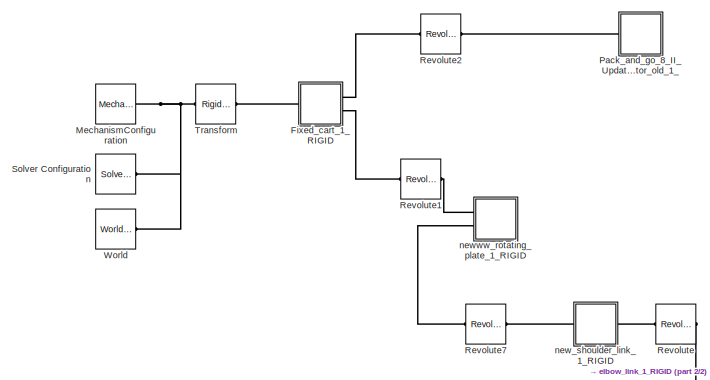
[diagram: root canvas - part 1/2, left side, full height]
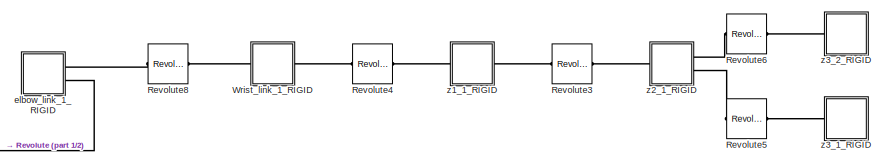
[diagram: root canvas - part 2/2, bottom right region]
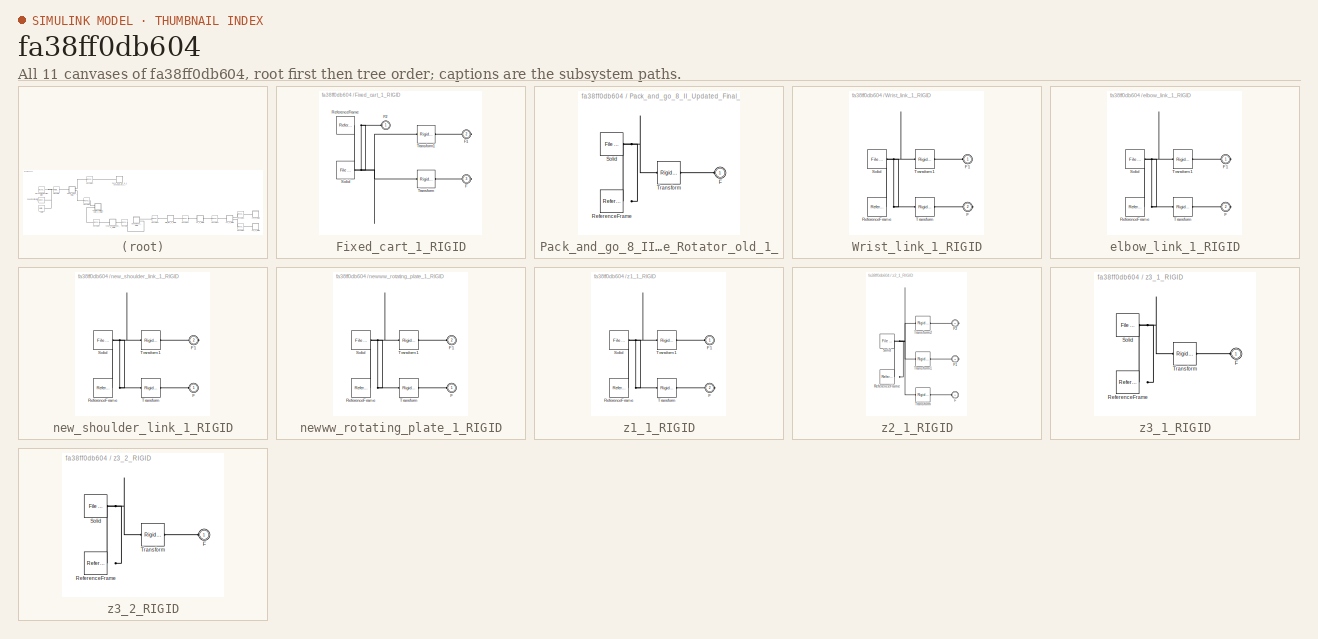
[diagram: thumbnail index - all 11 canvases of the model, root first then tree order]
MODEL slx_fa38ff0db604
KIND model
CONFIG AbsTol = auto
CONFIG EnableMultiTasking = off
CONFIG FixedStep = auto
CONFIG MaxStep = auto
CONFIG MinStep = auto
CONFIG RelTol = 1e-3
CONFIG SampleTimeConstraint = Unconstrained
CONFIG SolverName = VariableStepAuto
CONFIG StartTime = 0.0
CONFIG StopTime = 10.0
WORKSPACE source: external: MATLAB File  (data not in archive)
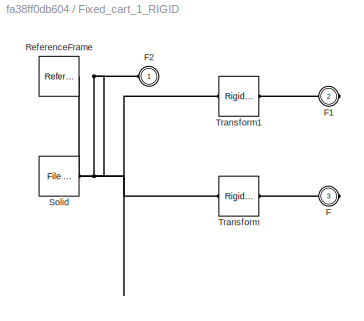
BLOCK [SubSystem] Fixed_cart_1_RIGID
  Ports = [0, 0, 0, 0, 0, 1, 2]
  RequestExecContextInheritance = off
BLOCK [PMIOPort] Fixed_cart_1_RIGID/F
  Port = 3
  Side = Right
BLOCK [PMIOPort] Fixed_cart_1_RIGID/F1
  Port = 2
  Side = Right
BLOCK [PMIOPort] Fixed_cart_1_RIGID/F2
  Side = Left
BLOCK [Reference] Fixed_cart_1_RIGID/ReferenceFrame  REF=sm_lib/Frames and
Transforms/Reference
Frame
  Ports = [0, 0, 0, 0, 0, 0, 1]
  SourceBlock = sm_lib/Frames and\nTransforms/Reference\nFrame
  SourceProductBaseCode = MS
  SourceType = Reference\nFrame
BLOCK [Reference] Fixed_cart_1_RIGID/Solid  REF=sm_lib/Body Elements/File Solid
  Ports = [0, 0, 0, 0, 0, 0, 1]
  SourceBlock = sm_lib/Body Elements/File Solid
  SourceProductBaseCode = MS
  SourceType = File Solid
BLOCK [Reference] Fixed_cart_1_RIGID/Transform  REF=sm_lib/Frames and
Transforms/Rigid
Transform
  Ports = [0, 0, 0, 0, 0, 1, 1]
  SourceBlock = sm_lib/Frames and\nTransforms/Rigid\nTransform
  SourceProductBaseCode = MS
  SourceType = Rigid\nTransform
BLOCK [Reference] Fixed_cart_1_RIGID/Transform1  REF=sm_lib/Frames and
Transforms/Rigid
Transform
  Ports = [0, 0, 0, 0, 0, 1, 1]
  SourceBlock = sm_lib/Frames and\nTransforms/Rigid\nTransform
  SourceProductBaseCode = MS
  SourceType = Rigid\nTransform
BLOCK [Reference] MechanismConfiguration  REF=sm_lib/Utilities/Mechanism
Configuration
  Ports = [0, 0, 0, 0, 0, 0, 1]
  SourceBlock = sm_lib/Utilities/Mechanism\nConfiguration
  SourceProductBaseCode = MS
  SourceType = Mechanism\nConfiguration
BLOCK [SubSystem] Pack_and_go_8_II_Updated_Final_Assembly_FileBase_Rotator_old_1_
  Ports = [0, 0, 0, 0, 0, 1]
  RequestExecContextInheritance = off
BLOCK [PMIOPort] Pack_and_go_8_II_Updated_Final_Assembly_FileBase_Rotator_old_1_/F
  Side = Left
BLOCK [Reference] Pack_and_go_8_II_Updated_Final_Assembly_FileBase_Rotator_old_1_/ReferenceFrame  REF=sm_lib/Frames and
Transforms/Reference
Frame
  Ports = [0, 0, 0, 0, 0, 0, 1]
  SourceBlock = sm_lib/Frames and\nTransforms/Reference\nFrame
  SourceProductBaseCode = MS
  SourceType = Reference\nFrame
BLOCK [Reference] Pack_and_go_8_II_Updated_Final_Assembly_FileBase_Rotator_old_1_/Solid  REF=sm_lib/Body Elements/File Solid
  Ports = [0, 0, 0, 0, 0, 0, 1]
  SourceBlock = sm_lib/Body Elements/File Solid
  SourceProductBaseCode = MS
  SourceType = File Solid
BLOCK [Reference] Pack_and_go_8_II_Updated_Final_Assembly_FileBase_Rotator_old_1_/Transform  REF=sm_lib/Frames and
Transforms/Rigid
Transform
  Ports = [0, 0, 0, 0, 0, 1, 1]
  SourceBlock = sm_lib/Frames and\nTransforms/Rigid\nTransform
  SourceProductBaseCode = MS
  SourceType = Rigid\nTransform
BLOCK [Reference] Revolute  REF=sm_lib/Joints/Revolute Joint
  Ports = [0, 0, 0, 0, 0, 1, 1]
  SourceBlock = sm_lib/Joints/Revolute Joint
  SourceProductBaseCode = MS
  SourceType = Revolute Joint
BLOCK [Reference] Revolute1  REF=sm_lib/Joints/Revolute Joint
  Ports = [0, 0, 0, 0, 0, 1, 1]
  SourceBlock = sm_lib/Joints/Revolute Joint
  SourceProductBaseCode = MS
  SourceType = Revolute Joint
BLOCK [Reference] Revolute2  REF=sm_lib/Joints/Revolute Joint
  Ports = [0, 0, 0, 0, 0, 1, 1]
  SourceBlock = sm_lib/Joints/Revolute Joint
  SourceProductBaseCode = MS
  SourceType = Revolute Joint
BLOCK [Reference] Revolute3  REF=sm_lib/Joints/Revolute Joint
  Ports = [0, 0, 0, 0, 0, 1, 1]
  SourceBlock = sm_lib/Joints/Revolute Joint
  SourceProductBaseCode = MS
  SourceType = Revolute Joint
BLOCK [Reference] Revolute4  REF=sm_lib/Joints/Revolute Joint
  Ports = [0, 0, 0, 0, 0, 1, 1]
  SourceBlock = sm_lib/Joints/Revolute Joint
  SourceProductBaseCode = MS
  SourceType = Revolute Joint
BLOCK [Reference] Revolute5  REF=sm_lib/Joints/Revolute Joint
  Ports = [0, 0, 0, 0, 0, 1, 1]
  SourceBlock = sm_lib/Joints/Revolute Joint
  SourceProductBaseCode = MS
  SourceType = Revolute Joint
BLOCK [Reference] Revolute6  REF=sm_lib/Joints/Revolute Joint
  Ports = [0, 0, 0, 0, 0, 1, 1]
  SourceBlock = sm_lib/Joints/Revolute Joint
  SourceProductBaseCode = MS
  SourceType = Revolute Joint
BLOCK [Reference] Revolute7  REF=sm_lib/Joints/Revolute Joint
  Ports = [0, 0, 0, 0, 0, 1, 1]
  SourceBlock = sm_lib/Joints/Revolute Joint
  SourceProductBaseCode = MS
  SourceType = Revolute Joint
BLOCK [Reference] Revolute8  REF=sm_lib/Joints/Revolute Joint
  Ports = [0, 0, 0, 0, 0, 1, 1]
  SourceBlock = sm_lib/Joints/Revolute Joint
  SourceProductBaseCode = MS
  SourceType = Revolute Joint
BLOCK [Reference] Solver Configuration  REF=nesl_utility/Solver
Configuration
  Ports = [0, 0, 0, 0, 0, 0, 1]
  SourceBlock = nesl_utility/Solver\nConfiguration
  SourceProductBaseCode = PW,SS
  SourceType = Solver\nConfiguration
BLOCK [Reference] Transform  REF=sm_lib/Frames and
Transforms/Rigid
Transform
  Ports = [0, 0, 0, 0, 0, 1, 1]
  SourceBlock = sm_lib/Frames and\nTransforms/Rigid\nTransform
  SourceProductBaseCode = MS
  SourceType = Rigid\nTransform
BLOCK [Reference] World  REF=sm_lib/Frames and
Transforms/World Frame
  Ports = [0, 0, 0, 0, 0, 0, 1]
  SourceBlock = sm_lib/Frames and\nTransforms/World Frame
  SourceProductBaseCode = MS
  SourceType = World Frame
BLOCK [SubSystem] Wrist_link_1_RIGID
  Ports = [0, 0, 0, 0, 0, 1, 1]
  RequestExecContextInheritance = off
BLOCK [PMIOPort] Wrist_link_1_RIGID/F
  Port = 2
  Side = Right
BLOCK [PMIOPort] Wrist_link_1_RIGID/F1
  Side = Left
BLOCK [Reference] Wrist_link_1_RIGID/ReferenceFrame  REF=sm_lib/Frames and
Transforms/Reference
Frame
  Ports = [0, 0, 0, 0, 0, 0, 1]
  SourceBlock = sm_lib/Frames and\nTransforms/Reference\nFrame
  SourceProductBaseCode = MS
  SourceType = Reference\nFrame
BLOCK [Reference] Wrist_link_1_RIGID/Solid  REF=sm_lib/Body Elements/File Solid
  Ports = [0, 0, 0, 0, 0, 0, 1]
  SourceBlock = sm_lib/Body Elements/File Solid
  SourceProductBaseCode = MS
  SourceType = File Solid
BLOCK [Reference] Wrist_link_1_RIGID/Transform  REF=sm_lib/Frames and
Transforms/Rigid
Transform
  Ports = [0, 0, 0, 0, 0, 1, 1]
  SourceBlock = sm_lib/Frames and\nTransforms/Rigid\nTransform
  SourceProductBaseCode = MS
  SourceType = Rigid\nTransform
BLOCK [Reference] Wrist_link_1_RIGID/Transform1  REF=sm_lib/Frames and
Transforms/Rigid
Transform
  Ports = [0, 0, 0, 0, 0, 1, 1]
  SourceBlock = sm_lib/Frames and\nTransforms/Rigid\nTransform
  SourceProductBaseCode = MS
  SourceType = Rigid\nTransform
BLOCK [SubSystem] elbow_link_1_RIGID
  Ports = [0, 0, 0, 0, 0, 0, 2]
  RequestExecContextInheritance = off
BLOCK [PMIOPort] elbow_link_1_RIGID/F
  Port = 2
  Side = Right
BLOCK [PMIOPort] elbow_link_1_RIGID/F1
  Side = Right
BLOCK [Reference] elbow_link_1_RIGID/ReferenceFrame  REF=sm_lib/Frames and
Transforms/Reference
Frame
  Ports = [0, 0, 0, 0, 0, 0, 1]
  SourceBlock = sm_lib/Frames and\nTransforms/Reference\nFrame
  SourceProductBaseCode = MS
  SourceType = Reference\nFrame
BLOCK [Reference] elbow_link_1_RIGID/Solid  REF=sm_lib/Body Elements/File Solid
  Ports = [0, 0, 0, 0, 0, 0, 1]
  SourceBlock = sm_lib/Body Elements/File Solid
  SourceProductBaseCode = MS
  SourceType = File Solid
BLOCK [Reference] elbow_link_1_RIGID/Transform  REF=sm_lib/Frames and
Transforms/Rigid
Transform
  Ports = [0, 0, 0, 0, 0, 1, 1]
  SourceBlock = sm_lib/Frames and\nTransforms/Rigid\nTransform
  SourceProductBaseCode = MS
  SourceType = Rigid\nTransform
BLOCK [Reference] elbow_link_1_RIGID/Transform1  REF=sm_lib/Frames and
Transforms/Rigid
Transform
  Ports = [0, 0, 0, 0, 0, 1, 1]
  SourceBlock = sm_lib/Frames and\nTransforms/Rigid\nTransform
  SourceProductBaseCode = MS
  SourceType = Rigid\nTransform
BLOCK [SubSystem] new_shoulder_link_1_RIGID
  Ports = [0, 0, 0, 0, 0, 1, 1]
  RequestExecContextInheritance = off
BLOCK [PMIOPort] new_shoulder_link_1_RIGID/F
  Side = Left
BLOCK [PMIOPort] new_shoulder_link_1_RIGID/F1
  Port = 2
  Side = Right
BLOCK [Reference] new_shoulder_link_1_RIGID/ReferenceFrame  REF=sm_lib/Frames and
Transforms/Reference
Frame
  Ports = [0, 0, 0, 0, 0, 0, 1]
  SourceBlock = sm_lib/Frames and\nTransforms/Reference\nFrame
  SourceProductBaseCode = MS
  SourceType = Reference\nFrame
BLOCK [Reference] new_shoulder_link_1_RIGID/Solid  REF=sm_lib/Body Elements/File Solid
  Ports = [0, 0, 0, 0, 0, 0, 1]
  SourceBlock = sm_lib/Body Elements/File Solid
  SourceProductBaseCode = MS
  SourceType = File Solid
BLOCK [Reference] new_shoulder_link_1_RIGID/Transform  REF=sm_lib/Frames and
Transforms/Rigid
Transform
  Ports = [0, 0, 0, 0, 0, 1, 1]
  SourceBlock = sm_lib/Frames and\nTransforms/Rigid\nTransform
  SourceProductBaseCode = MS
  SourceType = Rigid\nTransform
BLOCK [Reference] new_shoulder_link_1_RIGID/Transform1  REF=sm_lib/Frames and
Transforms/Rigid
Transform
  Ports = [0, 0, 0, 0, 0, 1, 1]
  SourceBlock = sm_lib/Frames and\nTransforms/Rigid\nTransform
  SourceProductBaseCode = MS
  SourceType = Rigid\nTransform
BLOCK [SubSystem] newww_rotating_plate_1_RIGID
  Ports = [0, 0, 0, 0, 0, 2]
  RequestExecContextInheritance = off
BLOCK [PMIOPort] newww_rotating_plate_1_RIGID/F
  Side = Left
BLOCK [PMIOPort] newww_rotating_plate_1_RIGID/F1
  Port = 2
  Side = Left
BLOCK [Reference] newww_rotating_plate_1_RIGID/ReferenceFrame  REF=sm_lib/Frames and
Transforms/Reference
Frame
  Ports = [0, 0, 0, 0, 0, 0, 1]
  SourceBlock = sm_lib/Frames and\nTransforms/Reference\nFrame
  SourceProductBaseCode = MS
  SourceType = Reference\nFrame
BLOCK [Reference] newww_rotating_plate_1_RIGID/Solid  REF=sm_lib/Body Elements/File Solid
  Ports = [0, 0, 0, 0, 0, 0, 1]
  SourceBlock = sm_lib/Body Elements/File Solid
  SourceProductBaseCode = MS
  SourceType = File Solid
BLOCK [Reference] newww_rotating_plate_1_RIGID/Transform  REF=sm_lib/Frames and
Transforms/Rigid
Transform
  Ports = [0, 0, 0, 0, 0, 1, 1]
  SourceBlock = sm_lib/Frames and\nTransforms/Rigid\nTransform
  SourceProductBaseCode = MS
  SourceType = Rigid\nTransform
BLOCK [Reference] newww_rotating_plate_1_RIGID/Transform1  REF=sm_lib/Frames and
Transforms/Rigid
Transform
  Ports = [0, 0, 0, 0, 0, 1, 1]
  SourceBlock = sm_lib/Frames and\nTransforms/Rigid\nTransform
  SourceProductBaseCode = MS
  SourceType = Rigid\nTransform
BLOCK [SubSystem] z1_1_RIGID
  Ports = [0, 0, 0, 0, 0, 1, 1]
  RequestExecContextInheritance = off
BLOCK [PMIOPort] z1_1_RIGID/F
  Port = 2
  Side = Right
BLOCK [PMIOPort] z1_1_RIGID/F1
  Side = Left
BLOCK [Reference] z1_1_RIGID/ReferenceFrame  REF=sm_lib/Frames and
Transforms/Reference
Frame
  Ports = [0, 0, 0, 0, 0, 0, 1]
  SourceBlock = sm_lib/Frames and\nTransforms/Reference\nFrame
  SourceProductBaseCode = MS
  SourceType = Reference\nFrame
BLOCK [Reference] z1_1_RIGID/Solid  REF=sm_lib/Body Elements/File Solid
  Ports = [0, 0, 0, 0, 0, 0, 1]
  SourceBlock = sm_lib/Body Elements/File Solid
  SourceProductBaseCode = MS
  SourceType = File Solid
BLOCK [Reference] z1_1_RIGID/Transform  REF=sm_lib/Frames and
Transforms/Rigid
Transform
  Ports = [0, 0, 0, 0, 0, 1, 1]
  SourceBlock = sm_lib/Frames and\nTransforms/Rigid\nTransform
  SourceProductBaseCode = MS
  SourceType = Rigid\nTransform
BLOCK [Reference] z1_1_RIGID/Transform1  REF=sm_lib/Frames and
Transforms/Rigid
Transform
  Ports = [0, 0, 0, 0, 0, 1, 1]
  SourceBlock = sm_lib/Frames and\nTransforms/Rigid\nTransform
  SourceProductBaseCode = MS
  SourceType = Rigid\nTransform
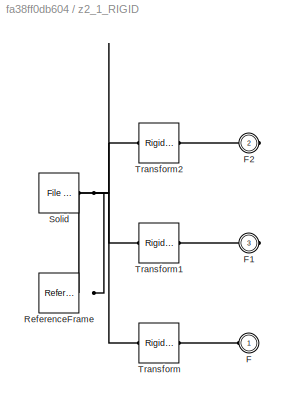
BLOCK [SubSystem] z2_1_RIGID
  Ports = [0, 0, 0, 0, 0, 1, 2]
  RequestExecContextInheritance = off
BLOCK [PMIOPort] z2_1_RIGID/F
  Side = Left
BLOCK [PMIOPort] z2_1_RIGID/F1
  Port = 3
  Side = Right
BLOCK [PMIOPort] z2_1_RIGID/F2
  Port = 2
  Side = Right
BLOCK [Reference] z2_1_RIGID/ReferenceFrame  REF=sm_lib/Frames and
Transforms/Reference
Frame
  Ports = [0, 0, 0, 0, 0, 0, 1]
  SourceBlock = sm_lib/Frames and\nTransforms/Reference\nFrame
  SourceProductBaseCode = MS
  SourceType = Reference\nFrame
BLOCK [Reference] z2_1_RIGID/Solid  REF=sm_lib/Body Elements/File Solid
  Ports = [0, 0, 0, 0, 0, 0, 1]
  SourceBlock = sm_lib/Body Elements/File Solid
  SourceProductBaseCode = MS
  SourceType = File Solid
BLOCK [Reference] z2_1_RIGID/Transform  REF=sm_lib/Frames and
Transforms/Rigid
Transform
  Ports = [0, 0, 0, 0, 0, 1, 1]
  SourceBlock = sm_lib/Frames and\nTransforms/Rigid\nTransform
  SourceProductBaseCode = MS
  SourceType = Rigid\nTransform
BLOCK [Reference] z2_1_RIGID/Transform1  REF=sm_lib/Frames and
Transforms/Rigid
Transform
  Ports = [0, 0, 0, 0, 0, 1, 1]
  SourceBlock = sm_lib/Frames and\nTransforms/Rigid\nTransform
  SourceProductBaseCode = MS
  SourceType = Rigid\nTransform
BLOCK [Reference] z2_1_RIGID/Transform2  REF=sm_lib/Frames and
Transforms/Rigid
Transform
  Ports = [0, 0, 0, 0, 0, 1, 1]
  SourceBlock = sm_lib/Frames and\nTransforms/Rigid\nTransform
  SourceProductBaseCode = MS
  SourceType = Rigid\nTransform
BLOCK [SubSystem] z3_1_RIGID
  Ports = [0, 0, 0, 0, 0, 1]
  RequestExecContextInheritance = off
BLOCK [PMIOPort] z3_1_RIGID/F
  Side = Left
BLOCK [Reference] z3_1_RIGID/ReferenceFrame  REF=sm_lib/Frames and
Transforms/Reference
Frame
  Ports = [0, 0, 0, 0, 0, 0, 1]
  SourceBlock = sm_lib/Frames and\nTransforms/Reference\nFrame
  SourceProductBaseCode = MS
  SourceType = Reference\nFrame
BLOCK [Reference] z3_1_RIGID/Solid  REF=sm_lib/Body Elements/File Solid
  Ports = [0, 0, 0, 0, 0, 0, 1]
  SourceBlock = sm_lib/Body Elements/File Solid
  SourceProductBaseCode = MS
  SourceType = File Solid
BLOCK [Reference] z3_1_RIGID/Transform  REF=sm_lib/Frames and
Transforms/Rigid
Transform
  Ports = [0, 0, 0, 0, 0, 1, 1]
  SourceBlock = sm_lib/Frames and\nTransforms/Rigid\nTransform
  SourceProductBaseCode = MS
  SourceType = Rigid\nTransform
BLOCK [SubSystem] z3_2_RIGID
  Ports = [0, 0, 0, 0, 0, 1]
  RequestExecContextInheritance = off
BLOCK [PMIOPort] z3_2_RIGID/F
  Side = Left
BLOCK [Reference] z3_2_RIGID/ReferenceFrame  REF=sm_lib/Frames and
Transforms/Reference
Frame
  Ports = [0, 0, 0, 0, 0, 0, 1]
  SourceBlock = sm_lib/Frames and\nTransforms/Reference\nFrame
  SourceProductBaseCode = MS
  SourceType = Reference\nFrame
BLOCK [Reference] z3_2_RIGID/Solid  REF=sm_lib/Body Elements/File Solid
  Ports = [0, 0, 0, 0, 0, 0, 1]
  SourceBlock = sm_lib/Body Elements/File Solid
  SourceProductBaseCode = MS
  SourceType = File Solid
BLOCK [Reference] z3_2_RIGID/Transform  REF=sm_lib/Frames and
Transforms/Rigid
Transform
  Ports = [0, 0, 0, 0, 0, 1, 1]
  SourceBlock = sm_lib/Frames and\nTransforms/Rigid\nTransform
  SourceProductBaseCode = MS
  SourceType = Rigid\nTransform
PLINE Fixed_cart_1_RIGID/F1:RConn1 -- Fixed_cart_1_RIGID/Transform1:RConn1
PNET net1: Fixed_cart_1_RIGID/F2:RConn1 -- Fixed_cart_1_RIGID/ReferenceFrame:RConn1 -- Fixed_cart_1_RIGID/Solid:RConn1 -- Fixed_cart_1_RIGID/Transform1:LConn1 -- Fixed_cart_1_RIGID/Transform:LConn1
PLINE Fixed_cart_1_RIGID/F:RConn1 -- Fixed_cart_1_RIGID/Transform:RConn1
PLINE Fixed_cart_1_RIGID:LConn1 -- Transform:RConn1
PLINE Fixed_cart_1_RIGID:RConn1 -- Revolute2:LConn1
PLINE Fixed_cart_1_RIGID:RConn2 -- Revolute1:LConn1
PNET net2: MechanismConfiguration:RConn1 -- Solver Configuration:RConn1 -- Transform:LConn1 -- World:RConn1
PLINE Pack_and_go_8_II_Updated_Final_Assembly_FileBase_Rotator_old_1_/F:RConn1 -- Pack_and_go_8_II_Updated_Final_Assembly_FileBase_Rotator_old_1_/Transform:RConn1
PNET net3: Pack_and_go_8_II_Updated_Final_Assembly_FileBase_Rotator_old_1_/ReferenceFrame:RConn1 -- Pack_and_go_8_II_Updated_Final_Assembly_FileBase_Rotator_old_1_/Solid:RConn1 -- Pack_and_go_8_II_Updated_Final_Assembly_FileBase_Rotator_old_1_/Transform:LConn1
PLINE Pack_and_go_8_II_Updated_Final_Assembly_FileBase_Rotator_old_1_:LConn1 -- Revolute2:RConn1
PLINE Revolute1:RConn1 -- newww_rotating_plate_1_RIGID:LConn1
PLINE Revolute3:LConn1 -- z1_1_RIGID:RConn1
PLINE Revolute3:RConn1 -- z2_1_RIGID:LConn1
PLINE Revolute4:LConn1 -- Wrist_link_1_RIGID:RConn1
PLINE Revolute4:RConn1 -- z1_1_RIGID:LConn1
PLINE Revolute5:LConn1 -- z2_1_RIGID:RConn2
PLINE Revolute5:RConn1 -- z3_1_RIGID:LConn1
PLINE Revolute6:LConn1 -- z2_1_RIGID:RConn1
PLINE Revolute6:RConn1 -- z3_2_RIGID:LConn1
PLINE Revolute7:LConn1 -- new_shoulder_link_1_RIGID:RConn1
PLINE Revolute7:RConn1 -- newww_rotating_plate_1_RIGID:LConn2
PLINE Revolute8:LConn1 -- elbow_link_1_RIGID:RConn1
PLINE Revolute8:RConn1 -- Wrist_link_1_RIGID:LConn1
PLINE Revolute:LConn1 -- elbow_link_1_RIGID:RConn2
PLINE Revolute:RConn1 -- new_shoulder_link_1_RIGID:LConn1
PLINE Wrist_link_1_RIGID/F1:RConn1 -- Wrist_link_1_RIGID/Transform1:RConn1
PLINE Wrist_link_1_RIGID/F:RConn1 -- Wrist_link_1_RIGID/Transform:RConn1
PNET net4: Wrist_link_1_RIGID/ReferenceFrame:RConn1 -- Wrist_link_1_RIGID/Solid:RConn1 -- Wrist_link_1_RIGID/Transform1:LConn1 -- Wrist_link_1_RIGID/Transform:LConn1
PLINE elbow_link_1_RIGID/F1:RConn1 -- elbow_link_1_RIGID/Transform1:RConn1
PLINE elbow_link_1_RIGID/F:RConn1 -- elbow_link_1_RIGID/Transform:RConn1
PNET net5: elbow_link_1_RIGID/ReferenceFrame:RConn1 -- elbow_link_1_RIGID/Solid:RConn1 -- elbow_link_1_RIGID/Transform1:LConn1 -- elbow_link_1_RIGID/Transform:LConn1
PLINE new_shoulder_link_1_RIGID/F1:RConn1 -- new_shoulder_link_1_RIGID/Transform1:RConn1
PLINE new_shoulder_link_1_RIGID/F:RConn1 -- new_shoulder_link_1_RIGID/Transform:RConn1
PNET net6: new_shoulder_link_1_RIGID/ReferenceFrame:RConn1 -- new_shoulder_link_1_RIGID/Solid:RConn1 -- new_shoulder_link_1_RIGID/Transform1:LConn1 -- new_shoulder_link_1_RIGID/Transform:LConn1
PLINE newww_rotating_plate_1_RIGID/F1:RConn1 -- newww_rotating_plate_1_RIGID/Transform1:RConn1
PLINE newww_rotating_plate_1_RIGID/F:RConn1 -- newww_rotating_plate_1_RIGID/Transform:RConn1
PNET net7: newww_rotating_plate_1_RIGID/ReferenceFrame:RConn1 -- newww_rotating_plate_1_RIGID/Solid:RConn1 -- newww_rotating_plate_1_RIGID/Transform1:LConn1 -- newww_rotating_plate_1_RIGID/Transform:LConn1
PLINE z1_1_RIGID/F1:RConn1 -- z1_1_RIGID/Transform1:RConn1
PLINE z1_1_RIGID/F:RConn1 -- z1_1_RIGID/Transform:RConn1
PNET net8: z1_1_RIGID/ReferenceFrame:RConn1 -- z1_1_RIGID/Solid:RConn1 -- z1_1_RIGID/Transform1:LConn1 -- z1_1_RIGID/Transform:LConn1
PLINE z2_1_RIGID/F1:RConn1 -- z2_1_RIGID/Transform1:RConn1
PLINE z2_1_RIGID/F2:RConn1 -- z2_1_RIGID/Transform2:RConn1
PLINE z2_1_RIGID/F:RConn1 -- z2_1_RIGID/Transform:RConn1
PNET net9: z2_1_RIGID/ReferenceFrame:RConn1 -- z2_1_RIGID/Solid:RConn1 -- z2_1_RIGID/Transform1:LConn1 -- z2_1_RIGID/Transform2:LConn1 -- z2_1_RIGID/Transform:LConn1
PLINE z3_1_RIGID/F:RConn1 -- z3_1_RIGID/Transform:RConn1
PNET net10: z3_1_RIGID/ReferenceFrame:RConn1 -- z3_1_RIGID/Solid:RConn1 -- z3_1_RIGID/Transform:LConn1
PLINE z3_2_RIGID/F:RConn1 -- z3_2_RIGID/Transform:RConn1
PNET net11: z3_2_RIGID/ReferenceFrame:RConn1 -- z3_2_RIGID/Solid:RConn1 -- z3_2_RIGID/Transform:LConn1
note: PNET lines group multi-terminal physical nets as a canonical sorted terminal list (undirected conserving connections); 2-terminal nets keep the pairwise PLINE form
